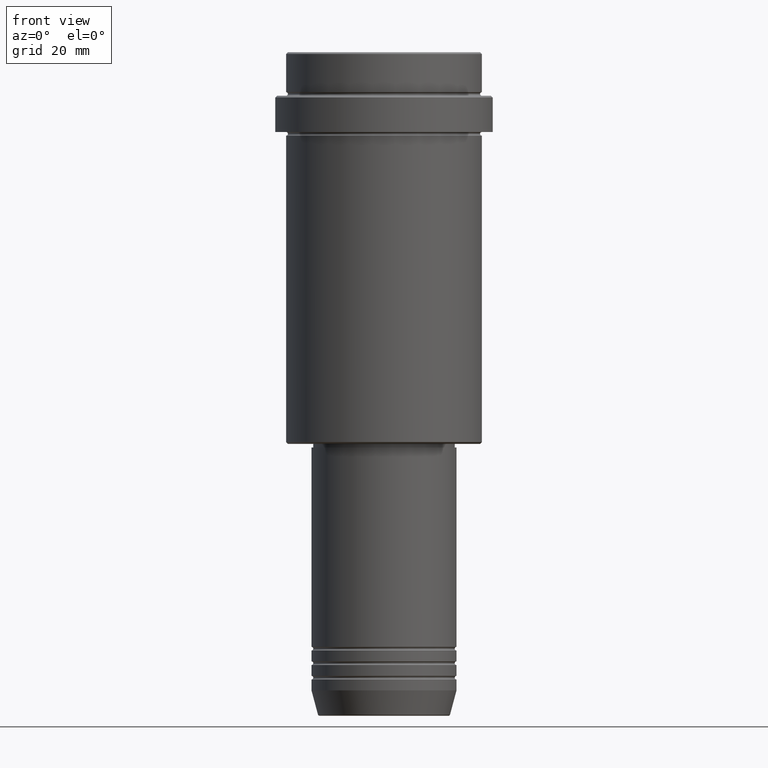
[diagram: clean part render]
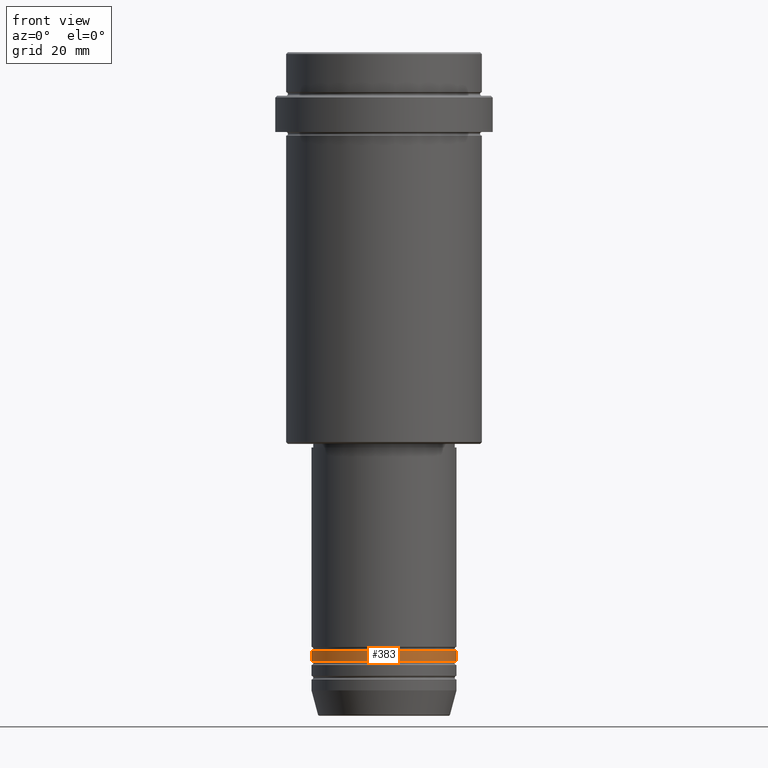
[diagram: same view with one face highlighted and labeled with its STEP entity id]
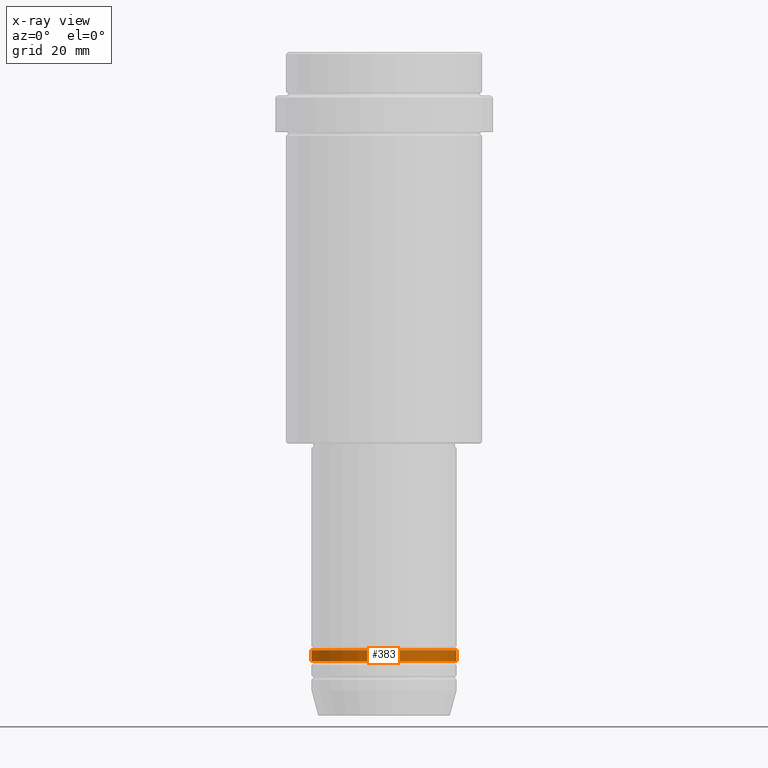
[diagram: x-ray of the same camera — body ghosted, the highlighted face saturated]
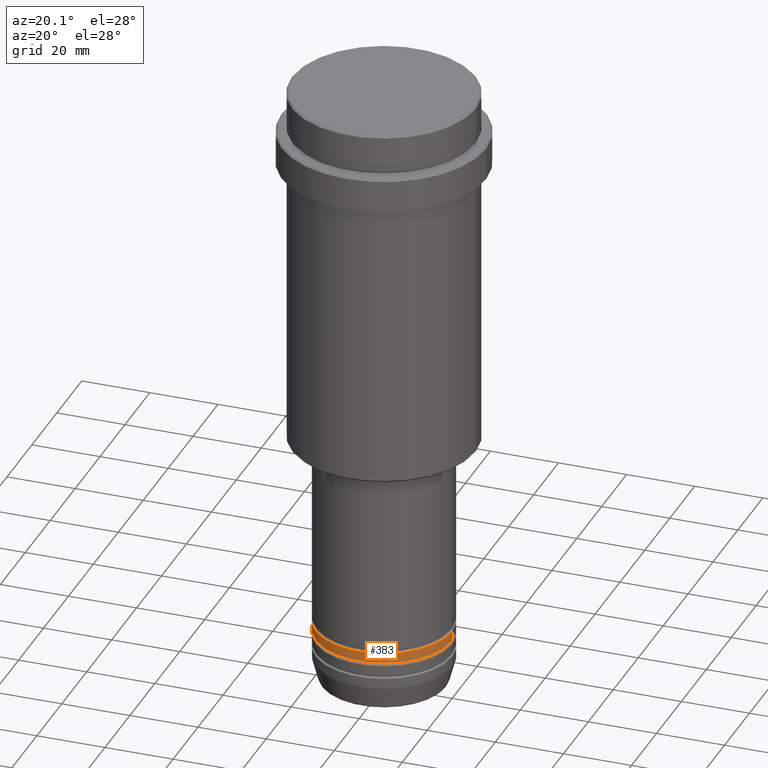
[diagram: same view with one face highlighted and labeled with its STEP entity id]
A machine part, front view. The second image highlights one B-rep face of the part: STEP entity #383.
The next image is the same camera in x-ray: the body ghosted, the highlighted face saturated — about 0% of this face is hidden behind the body in this view.
A second angle (auxiliary view) of the same face is appended — the face is thin or edge-on in the first view.
In plain terms, the highlighted cylindrical surface (partial cylindrical patch) has radius 20 mm, axis along (-0, -0, 1).
Its self-contained STEP definition (entity closure, byte-faithful):
#74 = EDGE_CURVE ( 'NONE', #1363, #145, #670, .T. ) ;
#141 = LINE ( 'NONE', #255, #1110 ) ;
#145 = VERTEX_POINT ( 'NONE', #150 ) ;
#150 = CARTESIAN_POINT ( 'NONE',  ( 20.00000000000000000, 0.000000000000000000, -164.9999999999999147 ) ) ;
#198 = CIRCLE ( 'NONE', #1049, 20.00000000000000000 ) ;
#206 = CARTESIAN_POINT ( 'NONE',  ( 20.00000000000000000, 0.000000000000000000, 0.000000000000000000 ) ) ;
#255 = CARTESIAN_POINT ( 'NONE',  ( -20.00000000000000000, 2.449293598294706513E-15, 0.000000000000000000 ) ) ;
#298 = DIRECTION ( 'NONE',  ( 1.000000000000000000, 0.000000000000000000, 0.000000000000000000 ) ) ;
#314 = AXIS2_PLACEMENT_3D ( 'NONE', #557, #1083, #890 ) ;
#329 = CARTESIAN_POINT ( 'NONE',  ( -20.00000000000000000, 2.449293598294706513E-15, -167.9999999999999147 ) ) ;
#332 = AXIS2_PLACEMENT_3D ( 'NONE', #829, #1375, #298 ) ;
#347 = ORIENTED_EDGE ( 'NONE', *, *, #1007, .T. ) ;
#383 = ADVANCED_FACE ( 'NONE', ( #940 ), #1371, .T. ) ;
#524 = VERTEX_POINT ( 'NONE', #329 ) ;
#557 = CARTESIAN_POINT ( 'NONE',  ( 0.000000000000000000, 0.000000000000000000, -164.9999999999999147 ) ) ;
#575 = EDGE_CURVE ( 'NONE', #524, #1363, #141, .T. ) ;
#643 = DIRECTION ( 'NONE',  ( -0.000000000000000000, -0.000000000000000000, 1.000000000000000000 ) ) ;
#647 = LINE ( 'NONE', #206, #1331 ) ;
#670 = CIRCLE ( 'NONE', #314, 20.00000000000000000 ) ;
#705 = DIRECTION ( 'NONE',  ( -0.000000000000000000, -0.000000000000000000, 1.000000000000000000 ) ) ;
#726 = ORIENTED_EDGE ( 'NONE', *, *, #575, .F. ) ;
#776 = DIRECTION ( 'NONE',  ( -0.000000000000000000, -0.000000000000000000, 1.000000000000000000 ) ) ;
#827 = EDGE_LOOP ( 'NONE', ( #726, #347, #899, #830 ) ) ;
#829 = CARTESIAN_POINT ( 'NONE',  ( 0.000000000000000000, 0.000000000000000000, 0.000000000000000000 ) ) ;
#830 = ORIENTED_EDGE ( 'NONE', *, *, #74, .F. ) ;
#890 = DIRECTION ( 'NONE',  ( 1.000000000000000000, 0.000000000000000000, 0.000000000000000000 ) ) ;
#895 = EDGE_CURVE ( 'NONE', #960, #145, #647, .T. ) ;
#899 = ORIENTED_EDGE ( 'NONE', *, *, #895, .T. ) ;
#940 = FACE_OUTER_BOUND ( 'NONE', #827, .T. ) ;
#960 = VERTEX_POINT ( 'NONE', #1102 ) ;
#968 = CARTESIAN_POINT ( 'NONE',  ( 0.000000000000000000, 0.000000000000000000, -167.9999999999999147 ) ) ;
#1007 = EDGE_CURVE ( 'NONE', #524, #960, #198, .T. ) ;
#1049 = AXIS2_PLACEMENT_3D ( 'NONE', #968, #776, #1402 ) ;
#1083 = DIRECTION ( 'NONE',  ( -0.000000000000000000, -0.000000000000000000, 1.000000000000000000 ) ) ;
#1102 = CARTESIAN_POINT ( 'NONE',  ( 20.00000000000000000, 0.000000000000000000, -167.9999999999999147 ) ) ;
#1110 = VECTOR ( 'NONE', #705, 1000.000000000000000 ) ;
#1298 = CARTESIAN_POINT ( 'NONE',  ( -20.00000000000000000, 2.449293598294706513E-15, -164.9999999999999147 ) ) ;
#1331 = VECTOR ( 'NONE', #643, 1000.000000000000000 ) ;
#1363 = VERTEX_POINT ( 'NONE', #1298 ) ;
#1371 = CYLINDRICAL_SURFACE ( 'NONE', #332, 20.00000000000000000 ) ;
#1375 = DIRECTION ( 'NONE',  ( -0.000000000000000000, -0.000000000000000000, 1.000000000000000000 ) ) ;
#1402 = DIRECTION ( 'NONE',  ( 1.000000000000000000, 0.000000000000000000, 0.000000000000000000 ) ) ;